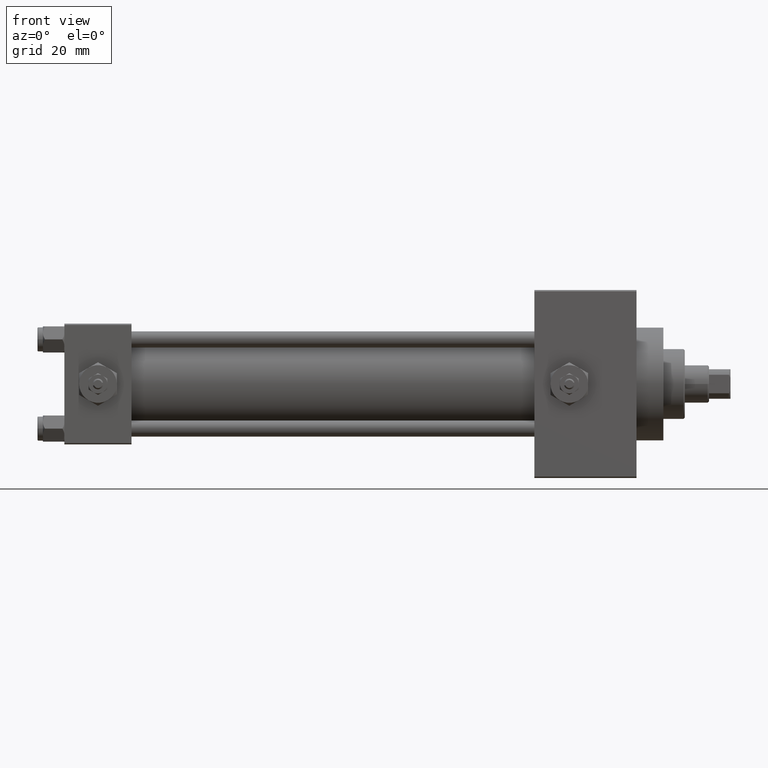
[diagram: clean part render]
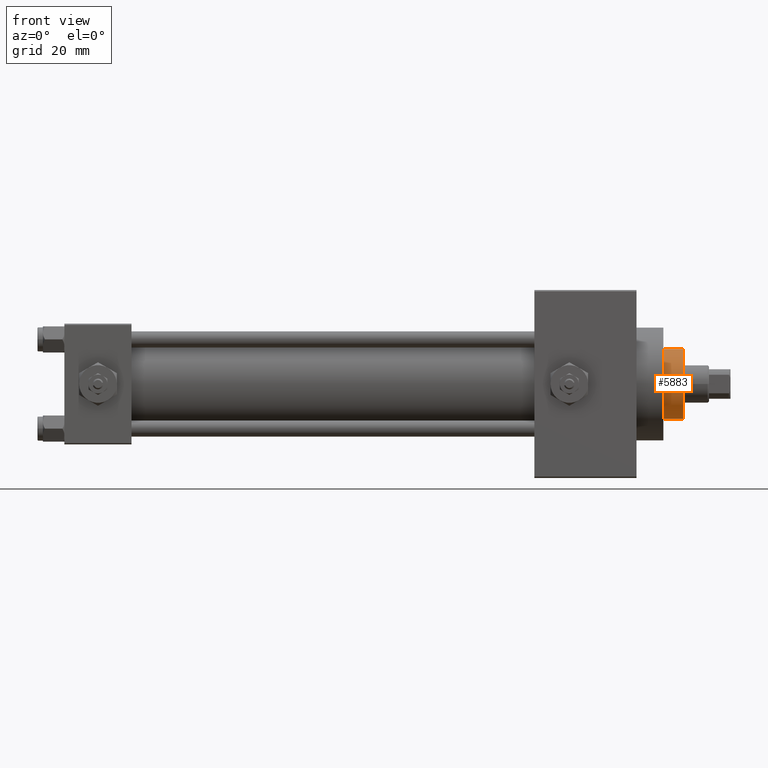
[diagram: same view with one face highlighted and labeled with its STEP entity id]
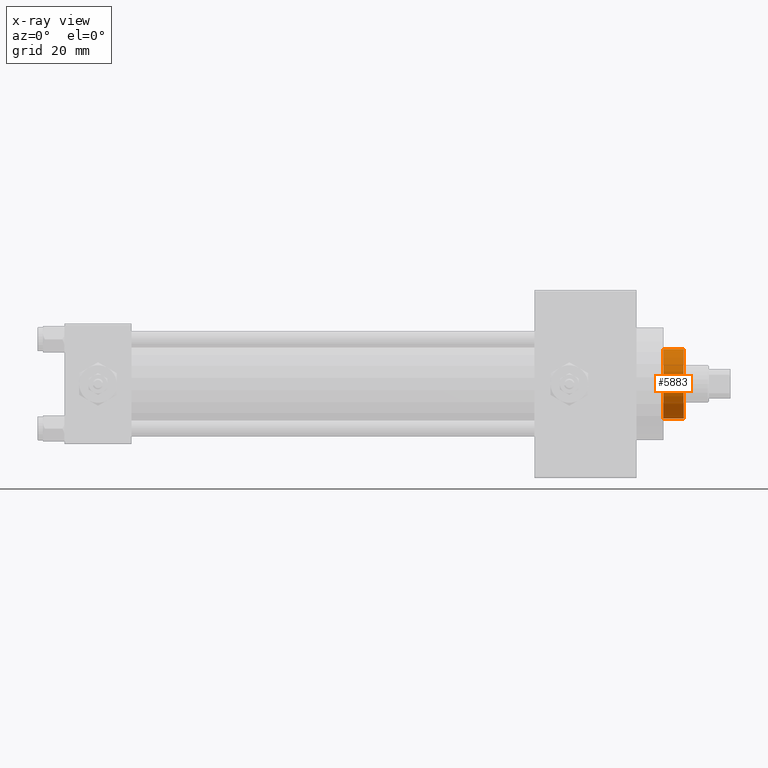
[diagram: x-ray of the same camera — body ghosted, the highlighted face saturated]
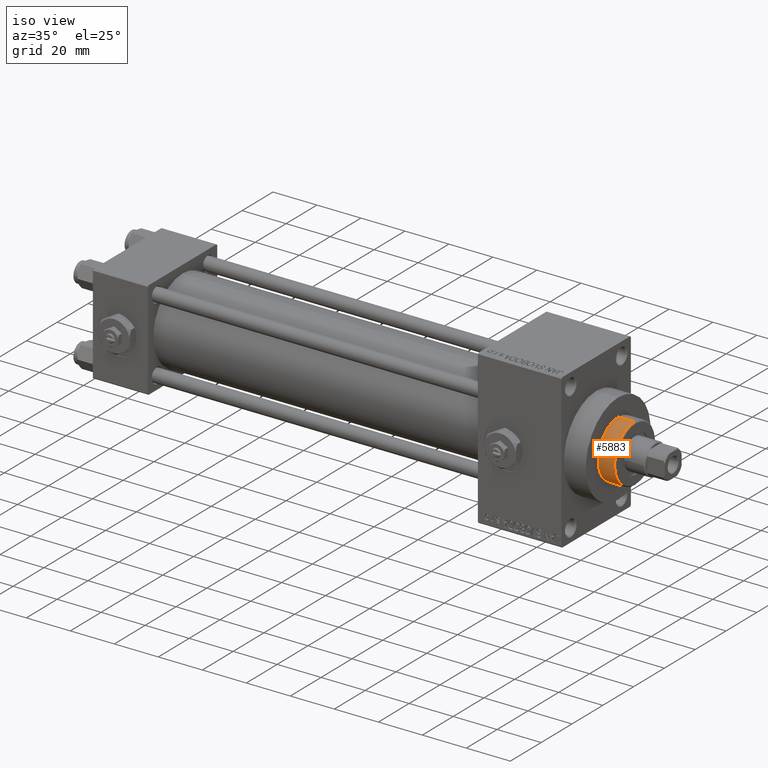
[diagram: same view with one face highlighted and labeled with its STEP entity id]
A machine part, front view. The second image highlights one B-rep face of the part: STEP entity #5883.
The next image is the same camera in x-ray: the body ghosted, the highlighted face saturated — about 0% of this face is hidden behind the body in this view.
A second angle (iso view) of the same face is appended — the face is thin or edge-on in the first view.
In plain terms, the highlighted cylindrical surface (edge-blend (fillet) strip) has radius 13 mm, axis along (-1, 0, 0).
Its self-contained STEP definition (entity closure, byte-faithful):
#214 = CARTESIAN_POINT ( 'NONE',  ( 13.00000000000000178, 1.592040838891559293E-15, 51.25999999999999801 ) ) ;
#2567 = CARTESIAN_POINT ( 'NONE',  ( 13.00000000000000178, 1.592040838891559293E-15, 50.75999999999997669 ) ) ;
#3466 = EDGE_CURVE ( 'NONE', #30493, #28144, #20781, .T. ) ;
#4180 = LINE ( 'NONE', #214, #33277 ) ;
#4498 = ORIENTED_EDGE ( 'NONE', *, *, #3466, .F. ) ;
#5883 = ADVANCED_FACE ( 'NONE', ( #46474 ), #27105, .T. ) ;
#6342 = DIRECTION ( 'NONE',  ( 1.000000000000000000, 0.000000000000000000, 0.000000000000000000 ) ) ;
#6809 = DIRECTION ( 'NONE',  ( 1.000000000000000000, 0.000000000000000000, 0.000000000000000000 ) ) ;
#7442 = EDGE_CURVE ( 'NONE', #12691, #28144, #45790, .T. ) ;
#9297 = AXIS2_PLACEMENT_3D ( 'NONE', #46965, #41997, #16433 ) ;
#10074 = CARTESIAN_POINT ( 'NONE',  ( 0.000000000000000000, 0.000000000000000000, 43.25999999999999801 ) ) ;
#10507 = EDGE_CURVE ( 'NONE', #30493, #38308, #16722, .T. ) ;
#12495 = CARTESIAN_POINT ( 'NONE',  ( 13.00000000000000178, 1.592040838891559293E-15, 43.25999999999999801 ) ) ;
#12691 = VERTEX_POINT ( 'NONE', #12495 ) ;
#16433 = DIRECTION ( 'NONE',  ( -1.000000000000000000, 0.000000000000000000, 0.000000000000000000 ) ) ;
#16722 = CIRCLE ( 'NONE', #35709, 13.00000000000000178 ) ;
#16840 = CARTESIAN_POINT ( 'NONE',  ( 0.000000000000000000, 0.000000000000000000, 50.75999999999997669 ) ) ;
#19569 = DIRECTION ( 'NONE',  ( -0.000000000000000000, -0.000000000000000000, -1.000000000000000000 ) ) ;
#20781 = LINE ( 'NONE', #43852, #32945 ) ;
#21940 = DIRECTION ( 'NONE',  ( 0.000000000000000000, 0.000000000000000000, -1.000000000000000000 ) ) ;
#21983 = AXIS2_PLACEMENT_3D ( 'NONE', #10074, #25206, #6342 ) ;
#25206 = DIRECTION ( 'NONE',  ( 0.000000000000000000, 0.000000000000000000, 1.000000000000000000 ) ) ;
#26793 = EDGE_CURVE ( 'NONE', #38308, #12691, #4180, .T. ) ;
#26961 = EDGE_LOOP ( 'NONE', ( #39608, #31283, #42228, #4498 ) ) ;
#27105 = CYLINDRICAL_SURFACE ( 'NONE', #9297, 13.00000000000000178 ) ;
#28144 = VERTEX_POINT ( 'NONE', #29003 ) ;
#29003 = CARTESIAN_POINT ( 'NONE',  ( -13.00000000000000178, 0.000000000000000000, 43.25999999999999801 ) ) ;
#30493 = VERTEX_POINT ( 'NONE', #48504 ) ;
#31283 = ORIENTED_EDGE ( 'NONE', *, *, #26793, .T. ) ;
#32945 = VECTOR ( 'NONE', #48059, 1000.000000000000000 ) ;
#33277 = VECTOR ( 'NONE', #19569, 1000.000000000000000 ) ;
#35709 = AXIS2_PLACEMENT_3D ( 'NONE', #16840, #21940, #6809 ) ;
#38308 = VERTEX_POINT ( 'NONE', #2567 ) ;
#39608 = ORIENTED_EDGE ( 'NONE', *, *, #10507, .T. ) ;
#41997 = DIRECTION ( 'NONE',  ( -0.000000000000000000, -0.000000000000000000, -1.000000000000000000 ) ) ;
#42228 = ORIENTED_EDGE ( 'NONE', *, *, #7442, .T. ) ;
#43852 = CARTESIAN_POINT ( 'NONE',  ( -13.00000000000000178, 0.000000000000000000, 51.25999999999999801 ) ) ;
#45790 = CIRCLE ( 'NONE', #21983, 13.00000000000000178 ) ;
#46474 = FACE_OUTER_BOUND ( 'NONE', #26961, .T. ) ;
#46965 = CARTESIAN_POINT ( 'NONE',  ( 0.000000000000000000, 0.000000000000000000, 51.25999999999999801 ) ) ;
#48059 = DIRECTION ( 'NONE',  ( -0.000000000000000000, -0.000000000000000000, -1.000000000000000000 ) ) ;
#48504 = CARTESIAN_POINT ( 'NONE',  ( -13.00000000000000178, 0.000000000000000000, 50.75999999999997669 ) ) ;